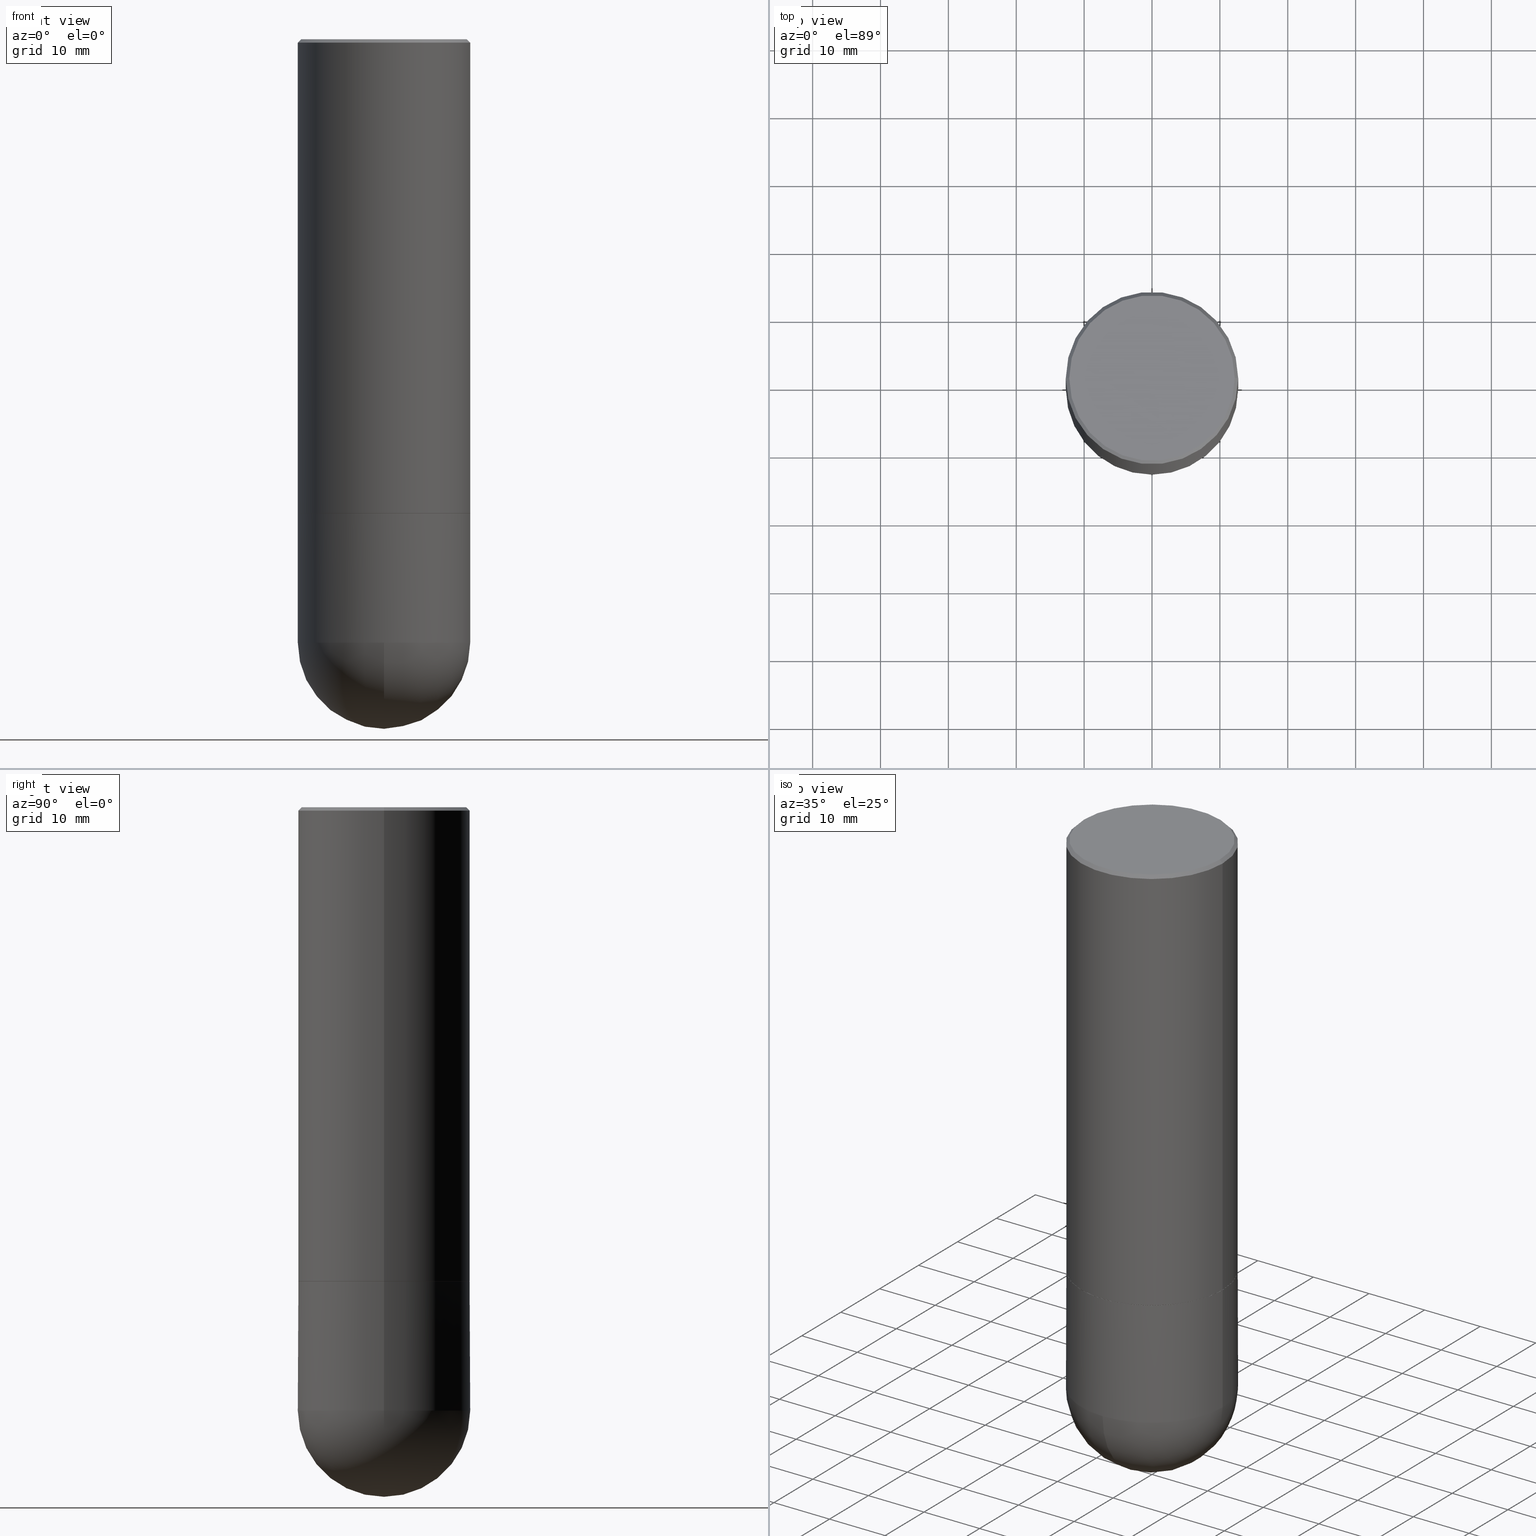
[diagram: canonical four-view strip — front | top / right | iso, engineering-drawing reading convention]
A machine part, canonical four-view strip (front | top / right | iso — engineering-drawing reading convention). The complete STEP part file that produces these views, byte-faithful:
ISO-10303-21;
HEADER;
FILE_DESCRIPTION (( 'STEP AP203' ),
    '1' );
FILE_NAME ('34988.STEP',
    '2024-02-21T18:45:18',
    ( '' ),
    ( '' ),
    'SwSTEP 2.0',
    'SolidWorks 2023',
    '' );
FILE_SCHEMA (( 'CONFIG_CONTROL_DESIGN' ));
ENDSEC;

DATA;
#1 = ORIENTED_EDGE ( 'NONE', *, *, #47, .T. ) ;
#2 = VERTEX_POINT ( 'NONE', #133 ) ;
#3 = EDGE_LOOP ( 'NONE', ( #289, #115, #224, #203, #50 ) ) ;
#4 = AXIS2_PLACEMENT_3D ( 'NONE', #364, #173, #239 ) ;
#5 = APPROVAL_DATE_TIME ( #132, #124 ) ;
#6 = CARTESIAN_POINT ( 'NONE',  ( -3.552713678800417310E-15, -0.5000000000000125455, -3.499999999999998668 ) ) ;
#7 = CALENDAR_DATE ( 2024, 21, 2 ) ;
#8 = CARTESIAN_POINT ( 'NONE',  ( 8.559140821647978089E-29, -1.222018468595101092E-14, -3.500000000000000444 ) ) ;
#9 = CC_DESIGN_DATE_AND_TIME_ASSIGNMENT ( #324, #202, ( #329 ) ) ;
#10 = CARTESIAN_POINT ( 'NONE',  ( 0.5000000000000000000, -1.440236052272796769E-14, -3.500000000000000444 ) ) ;
#11 = CIRCLE ( 'NONE', #77, 0.5000000000000000000 ) ;
#12 = CARTESIAN_POINT ( 'NONE',  ( 8.228021043734090721E-29, -1.269436705409105806E-14, -3.500000000000000000 ) ) ;
#13 = DIRECTION ( 'NONE',  ( 1.000000000000000000, -6.982962677686265133E-15, 0.000000000000000000 ) ) ;
#14 = EDGE_CURVE ( 'NONE', #20, #206, #290, .T. ) ;
#15 = DIRECTION ( 'NONE',  ( 1.000000000000000000, -6.982962677686265133E-15, 0.000000000000000000 ) ) ;
#16 = DIRECTION ( 'NONE',  ( -2.445468806185136597E-29, 3.491481338843145583E-15, 1.000000000000000000 ) ) ;
#17 = CIRCLE ( 'NONE', #284, 0.5000000000000002220 ) ;
#18 = CARTESIAN_POINT ( 'NONE',  ( 0.4800000000000003708, -3.396558832296484071E-15, -3.628235616585113699E-16 ) ) ;
#19 = SPHERICAL_SURFACE ( 'NONE', #260, 0.5000000000000002220 ) ;
#20 = VERTEX_POINT ( 'NONE', #361 ) ;
#21 = LINE ( 'NONE', #337, #46 ) ;
#22 = ORIENTED_EDGE ( 'NONE', *, *, #172, .T. ) ;
#23 = ORIENTED_EDGE ( 'NONE', *, *, #339, .F. ) ;
#24 = DIRECTION ( 'NONE',  ( 0.7071067811867165487, -2.468850131084027659E-15, 0.7071067811863784858 ) ) ;
#25 = VERTEX_POINT ( 'NONE', #327 ) ;
#26 = VERTEX_POINT ( 'NONE', #6 ) ;
#27 = DIRECTION ( 'NONE',  ( -2.445468806185136877E-29, 3.491481338843145188E-15, 1.000000000000000000 ) ) ;
#28 = CALENDAR_DATE ( 2024, 21, 2 ) ;
#29 = ORIENTED_EDGE ( 'NONE', *, *, #80, .F. ) ;
#30 = APPLICATION_CONTEXT ( 'configuration controlled 3d designs of mechanical parts and assemblies' ) ;
#31 = CARTESIAN_POINT ( 'NONE',  ( 0.000000000000000000, 0.000000000000000000, 0.000000000000000000 ) ) ;
#32 = VERTEX_POINT ( 'NONE', #91 ) ;
#33 = AXIS2_PLACEMENT_3D ( 'NONE', #270, #300, #241 ) ;
#34 = DATE_AND_TIME ( #127, #280 ) ;
#35 = DIRECTION ( 'NONE',  ( 1.000000000000000000, -6.982962677686266711E-15, 0.000000000000000000 ) ) ;
#36 = EDGE_CURVE ( 'NONE', #338, #282, #66, .T. ) ;
#37 = DIRECTION ( 'NONE',  ( 1.000000000000000000, -6.982962677686266711E-15, 0.000000000000000000 ) ) ;
#38 = DIRECTION ( 'NONE',  ( -2.445468806185136597E-29, 3.491481338843145583E-15, 1.000000000000000000 ) ) ;
#39 = AXIS2_PLACEMENT_3D ( 'NONE', #382, #68, #198 ) ;
#40 = AXIS2_PLACEMENT_3D ( 'NONE', #51, #253, #281 ) ;
#41 = LINE ( 'NONE', #207, #245 ) ;
#42 = DIRECTION ( 'NONE',  ( -2.438088387897960049E-29, 3.491481338843145188E-15, 1.000000000000000000 ) ) ;
#43 = DESIGN_CONTEXT ( 'detailed design', #30, 'design' ) ;
#44 = FACE_OUTER_BOUND ( 'NONE', #86, .T. ) ;
#45 = CARTESIAN_POINT ( 'NONE',  ( 0.5000000000000000000, -3.500078625662629079E-15, -0.02000000000000010797 ) ) ;
#46 = VECTOR ( 'NONE', #24, 39.37007874015748143 ) ;
#47 = EDGE_CURVE ( 'NONE', #341, #196, #400, .T. ) ;
#48 = DIRECTION ( 'NONE',  ( 1.000000000000000000, -6.982962677686266711E-15, 4.878011538933546479E-29 ) ) ;
#49 = ORIENTED_EDGE ( 'NONE', *, *, #323, .T. ) ;
#50 = ORIENTED_EDGE ( 'NONE', *, *, #47, .F. ) ;
#51 = CARTESIAN_POINT ( 'NONE',  ( 0.000000000000000000, 0.000000000000000000, 0.000000000000000000 ) ) ;
#52 = AXIS2_PLACEMENT_3D ( 'NONE', #107, #75, #186 ) ;
#53 = LINE ( 'NONE', #304, #136 ) ;
#54 = ORIENTED_EDGE ( 'NONE', *, *, #156, .T. ) ;
#55 = CALENDAR_DATE ( 2024, 21, 2 ) ;
#56 = ORIENTED_EDGE ( 'NONE', *, *, #269, .F. ) ;
#57 = CALENDAR_DATE ( 2024, 21, 2 ) ;
#58 = ORIENTED_EDGE ( 'NONE', *, *, #355, .T. ) ;
#59 = LOCAL_TIME ( 13, 45, 18.00000000000000000, #227 ) ;
#60 = PERSON_AND_ORGANIZATION_ROLE ( 'classification_officer' ) ;
#61 = ORIENTED_EDGE ( 'NONE', *, *, #323, .F. ) ;
#62 = FACE_OUTER_BOUND ( 'NONE', #3, .T. ) ;
#63 = COORDINATED_UNIVERSAL_TIME_OFFSET ( 5, 0, .BEHIND. ) ;
#64 = CARTESIAN_POINT ( 'NONE',  ( 6.725039217009124520E-29, -9.601573681818649859E-15, -2.750000000000000000 ) ) ;
#65 = EDGE_CURVE ( 'NONE', #2, #26, #177, .T. ) ;
#66 = CIRCLE ( 'NONE', #104, 0.4800000000000003708 ) ;
#67 = AXIS2_PLACEMENT_3D ( 'NONE', #192, #283, #411 ) ;
#68 = DIRECTION ( 'NONE',  ( -2.445468806185136597E-29, 3.491481338843145583E-15, 1.000000000000000000 ) ) ;
#69 = CARTESIAN_POINT ( 'NONE',  ( 6.725039217009124520E-29, -9.601573681818649859E-15, -2.750000000000000000 ) ) ;
#70 = DIRECTION ( 'NONE',  ( 1.000000000000000000, -6.982962677686265922E-15, 4.876176775795935793E-29 ) ) ;
#71 = AXIS2_PLACEMENT_3D ( 'NONE', #242, #42, #70 ) ;
#72 = EDGE_CURVE ( 'NONE', #206, #261, #97, .T. ) ;
#73 = DIRECTION ( 'NONE',  ( 1.000000000000000000, -6.982962677686266711E-15, 0.000000000000000000 ) ) ;
#74 = CARTESIAN_POINT ( 'NONE',  ( 6.725039217009124520E-29, -9.601573681818649859E-15, -2.750000000000000000 ) ) ;
#75 = DIRECTION ( 'NONE',  ( 2.438088387897960049E-29, -3.491481338843145188E-15, -1.000000000000000000 ) ) ;
#76 = EDGE_CURVE ( 'NONE', #25, #20, #262, .T. ) ;
#77 = AXIS2_PLACEMENT_3D ( 'NONE', #277, #152, #343 ) ;
#78 = ORIENTED_EDGE ( 'NONE', *, *, #76, .F. ) ;
#79 = CARTESIAN_POINT ( 'NONE',  ( 8.559140821647978089E-29, -1.222018468595101092E-14, -3.500000000000000444 ) ) ;
#80 = EDGE_CURVE ( 'NONE', #254, #261, #315, .T. ) ;
#81 = EDGE_LOOP ( 'NONE', ( #293, #1 ) ) ;
#82 =( CONVERSION_BASED_UNIT ( 'INCH', #404 ) LENGTH_UNIT ( ) NAMED_UNIT ( #129 ) );
#83 = EDGE_LOOP ( 'NONE', ( #120, #375, #128, #326 ) ) ;
#84 = APPLICATION_CONTEXT ( 'configuration controlled 3d designs of mechanical parts and assemblies' ) ;
#85 = CARTESIAN_POINT ( 'NONE',  ( 8.228021043734090721E-29, -1.269436705409105806E-14, -3.500000000000000000 ) ) ;
#86 = EDGE_LOOP ( 'NONE', ( #406, #243, #286, #29 ) ) ;
#87 = SECURITY_CLASSIFICATION_LEVEL ( 'unclassified' ) ;
#88 = CARTESIAN_POINT ( 'NONE',  ( 4.890937612370299433E-31, -6.982962677686328587E-17, -0.02000000000000010797 ) ) ;
#89 = CC_DESIGN_PERSON_AND_ORGANIZATION_ASSIGNMENT ( #392, #60, ( #178 ) ) ;
#90 = PERSON_AND_ORGANIZATION ( #385, #342 ) ;
#91 = CARTESIAN_POINT ( 'NONE',  ( 9.472134604056145415E-29, -1.440949155353394884E-14, -4.000000000000000000 ) ) ;
#92 = AXIS2_PLACEMENT_3D ( 'NONE', #161, #287, #258 ) ;
#93 = APPROVAL_PERSON_ORGANIZATION ( #90, #231, #354 ) ;
#94 = ORIENTED_EDGE ( 'NONE', *, *, #217, .T. ) ;
#95 = APPROVAL_STATUS ( 'not_yet_approved' ) ;
#96 = CARTESIAN_POINT ( 'NONE',  ( 0.000000000000000000, 0.000000000000000000, 0.000000000000000000 ) ) ;
#97 = LINE ( 'NONE', #256, #119 ) ;
#98 = CIRCLE ( 'NONE', #209, 0.5000000000000002220 ) ;
#99 = FACE_OUTER_BOUND ( 'NONE', #83, .T. ) ;
#100 = UNCERTAINTY_MEASURE_WITH_UNIT (LENGTH_MEASURE( 1.000000000000000082E-05 ), #82, 'distance_accuracy_value', 'NONE');
#101 = DIRECTION ( 'NONE',  ( -7.105427357601001859E-15, -1.000000000000000000, 0.000000000000000000 ) ) ;
#102 = CC_DESIGN_PERSON_AND_ORGANIZATION_ASSIGNMENT ( #162, #348, ( #246 ) ) ;
#103 = DIRECTION ( 'NONE',  ( 6.982962677686266711E-15, 1.000000000000000000, 0.000000000000000000 ) ) ;
#104 = AXIS2_PLACEMENT_3D ( 'NONE', #349, #123, #320 ) ;
#105 = AXIS2_PLACEMENT_3D ( 'NONE', #31, #352, #390 ) ;
#106 = LINE ( 'NONE', #302, #386 ) ;
#107 = CARTESIAN_POINT ( 'NONE',  ( 3.491481338843200408E-15, 0.4999999999999903411, -2.750000000000001332 ) ) ;
#108 = EDGE_CURVE ( 'NONE', #248, #113, #359, .T. ) ;
#109 = FACE_OUTER_BOUND ( 'NONE', #216, .T. ) ;
#110 = ORIENTED_EDGE ( 'NONE', *, *, #339, .T. ) ;
#111 = DIRECTION ( 'NONE',  ( 1.000000000000000000, -6.982962677686265133E-15, 0.000000000000000000 ) ) ;
#112 = CC_DESIGN_APPROVAL ( #231, ( #178 ) ) ;
#113 = VERTEX_POINT ( 'NONE', #265 ) ;
#114 = ADVANCED_FACE ( 'NONE', ( #163 ), #279, .T. ) ;
#115 = ORIENTED_EDGE ( 'NONE', *, *, #65, .T. ) ;
#116 = CARTESIAN_POINT ( 'NONE',  ( 8.872737021849368446E-45, -1.266791694823380303E-30, -3.628235616585349371E-16 ) ) ;
#117 = ORIENTED_EDGE ( 'NONE', *, *, #80, .T. ) ;
#118 = DIRECTION ( 'NONE',  ( 0.7071067811865459074, -7.319954787623251312E-15, -0.7071067811865492381 ) ) ;
#119 = VECTOR ( 'NONE', #27, 39.37007874015748143 ) ;
#120 = ORIENTED_EDGE ( 'NONE', *, *, #217, .F. ) ;
#121 = AXIS2_PLACEMENT_3D ( 'NONE', #368, #16, #137 ) ;
#122 = DATE_AND_TIME ( #57, #148 ) ;
#123 = DIRECTION ( 'NONE',  ( -2.445468806185136597E-29, 3.491481338843145583E-15, 1.000000000000000000 ) ) ;
#124 = APPROVAL ( #321, 'UNSPECIFIED' ) ;
#125 = MANIFOLD_SOLID_BREP ( 'Body-Move/Copy2[2]', #167 ) ;
#126 = EDGE_LOOP ( 'NONE', ( #22, #346, #56, #23 ) ) ;
#127 = CALENDAR_DATE ( 2024, 21, 2 ) ;
#128 = ORIENTED_EDGE ( 'NONE', *, *, #108, .F. ) ;
#129 = DIMENSIONAL_EXPONENTS ( 1.000000000000000000, 0.000000000000000000, 0.000000000000000000, 0.000000000000000000, 0.000000000000000000, 0.000000000000000000, 0.000000000000000000 ) ;
#130 = APPLICATION_PROTOCOL_DEFINITION ( 'international standard', 'config_control_design', 1994, #30 ) ;
#131 = ORIENTED_EDGE ( 'NONE', *, *, #72, .F. ) ;
#132 = DATE_AND_TIME ( #55, #59 ) ;
#133 = CARTESIAN_POINT ( 'NONE',  ( -0.5000000000000000000, -7.358165505084333404E-15, -3.500000000000000444 ) ) ;
#134 = CARTESIAN_POINT ( 'NONE',  ( 0.5000000000000000000, -3.500078625662629079E-15, -0.02000000000000010797 ) ) ;
#135 = AXIS2_PLACEMENT_3D ( 'NONE', #88, #353, #166 ) ;
#136 = VECTOR ( 'NONE', #223, 39.37007874015748143 ) ;
#137 = DIRECTION ( 'NONE',  ( 1.000000000000000000, -6.982962677686267499E-15, 4.876176775795935793E-29 ) ) ;
#138 = CYLINDRICAL_SURFACE ( 'NONE', #33, 0.5000000000000001110 ) ;
#139 = MANIFOLD_SOLID_BREP ( 'Body-Move/Copy2[1]', #272 ) ;
#140 = FACE_OUTER_BOUND ( 'NONE', #222, .T. ) ;
#141 = PRODUCT ( '34988', '34988', '', ( #383 ) ) ;
#142 = AXIS2_PLACEMENT_3D ( 'NONE', #116, #378, #48 ) ;
#143 = ADVANCED_FACE ( 'NONE', ( #62 ), #322, .T. ) ;
#144 = CARTESIAN_POINT ( 'NONE',  ( -0.4800000000000003708, 3.386736898677839197E-15, -3.628235616585585043E-16 ) ) ;
#145 = DIRECTION ( 'NONE',  ( 2.438088387897960049E-29, -3.491481338843145188E-15, -1.000000000000000000 ) ) ;
#146 =( NAMED_UNIT ( * ) PLANE_ANGLE_UNIT ( ) SI_UNIT ( $, .RADIAN. ) );
#147 = EDGE_LOOP ( 'NONE', ( #155, #373 ) ) ;
#148 = LOCAL_TIME ( 13, 45, 18.00000000000000000, #234 ) ;
#149 = PLANE ( 'NONE',  #214 ) ;
#150 = EDGE_LOOP ( 'NONE', ( #153, #410, #61, #131 ) ) ;
#151 = CC_DESIGN_DATE_AND_TIME_ASSIGNMENT ( #122, #317, ( #178 ) ) ;
#152 = DIRECTION ( 'NONE',  ( -2.445468806185136597E-29, 3.491481338843145583E-15, 1.000000000000000000 ) ) ;
#153 = ORIENTED_EDGE ( 'NONE', *, *, #269, .T. ) ;
#154 = DIRECTION ( 'NONE',  ( -1.000000000000000000, 6.982962677686265922E-15, -4.876176775795935793E-29 ) ) ;
#155 = ORIENTED_EDGE ( 'NONE', *, *, #316, .T. ) ;
#156 = EDGE_CURVE ( 'NONE', #113, #2, #370, .T. ) ;
#157 = ORIENTED_EDGE ( 'NONE', *, *, #355, .F. ) ;
#158 = CC_DESIGN_APPROVAL ( #244, ( #329 ) ) ;
#159 = PERSON_AND_ORGANIZATION_ROLE ( 'creator' ) ;
#160 = ADVANCED_BREP_SHAPE_REPRESENTATION ( '34988', ( #139, #125, #105 ), #310 ) ;
#161 = CARTESIAN_POINT ( 'NONE',  ( 6.722593748202941159E-29, -9.598082200479808430E-15, -2.749000000000000110 ) ) ;
#162 = PERSON_AND_ORGANIZATION ( #385, #342 ) ;
#163 = FACE_OUTER_BOUND ( 'NONE', #314, .T. ) ;
#164 = EDGE_CURVE ( 'NONE', #20, #254, #41, .T. ) ;
#165 = PERSON_AND_ORGANIZATION ( #385, #342 ) ;
#166 = DIRECTION ( 'NONE',  ( 1.000000000000000000, -6.982962677686266711E-15, 0.000000000000000000 ) ) ;
#167 = CLOSED_SHELL ( 'NONE', ( #397, #194, #114, #367, #274, #169, #259, #394 ) ) ;
#168 = CIRCLE ( 'NONE', #204, 0.5000000000000002220 ) ;
#169 = ADVANCED_FACE ( 'NONE', ( #140 ), #176, .T. ) ;
#170 = SHAPE_DEFINITION_REPRESENTATION ( #301, #160 ) ;
#171 = DIRECTION ( 'NONE',  ( -0.7071067811867165487, 7.493145998870964739E-15, 0.7071067811863784858 ) ) ;
#172 = EDGE_CURVE ( 'NONE', #278, #25, #350, .T. ) ;
#173 = DIRECTION ( 'NONE',  ( -1.000000000000000000, 6.982962677686265922E-15, -4.883557194083113462E-29 ) ) ;
#174 = CC_DESIGN_PERSON_AND_ORGANIZATION_ASSIGNMENT ( #381, #159, ( #246 ) ) ;
#175 = DIRECTION ( 'NONE',  ( -1.000000000000000000, 7.105427357601001070E-15, -4.926315508542082329E-29 ) ) ;
#176 = CONICAL_SURFACE ( 'NONE', #365, 0.4989999999999999991, 0.7853981633976873100 ) ;
#177 = CIRCLE ( 'NONE', #213, 0.5000000000000000000 ) ;
#178 = SECURITY_CLASSIFICATION ( '', '', #87 ) ;
#179 = DIRECTION ( 'NONE',  ( -2.445468806185136877E-29, 3.491481338843145188E-15, 1.000000000000000000 ) ) ;
#180 = CARTESIAN_POINT ( 'NONE',  ( 6.725039217009124520E-29, -9.601573681818649859E-15, -2.750000000000000000 ) ) ;
#181 = EDGE_CURVE ( 'NONE', #25, #278, #331, .T. ) ;
#182 = CYLINDRICAL_SURFACE ( 'NONE', #121, 0.5000000000000001110 ) ;
#183 = FACE_OUTER_BOUND ( 'NONE', #126, .T. ) ;
#184 = CARTESIAN_POINT ( 'NONE',  ( -0.5000000000000000000, -7.358165505084330249E-15, -2.750000000000000000 ) ) ;
#185 = ORIENTED_EDGE ( 'NONE', *, *, #316, .F. ) ;
#186 = DIRECTION ( 'NONE',  ( -1.000000000000000000, 6.982962677686265922E-15, -4.876176775795935793E-29 ) ) ;
#187 = PRODUCT_RELATED_PRODUCT_CATEGORY ( 'detail', '', ( #141 ) ) ;
#188 = ORIENTED_EDGE ( 'NONE', *, *, #264, .T. ) ;
#189 = AXIS2_PLACEMENT_3D ( 'NONE', #180, #328, #13 ) ;
#190 = DIRECTION ( 'NONE',  ( -2.445468806185136597E-29, 3.491481338843145583E-15, 1.000000000000000000 ) ) ;
#191 = ORIENTED_EDGE ( 'NONE', *, *, #14, .F. ) ;
#192 = CARTESIAN_POINT ( 'NONE',  ( 4.890937612370299433E-31, -6.982962677686328587E-17, -0.02000000000000010797 ) ) ;
#193 = EDGE_LOOP ( 'NONE', ( #405, #236 ) ) ;
#194 = ADVANCED_FACE ( 'NONE', ( #334 ), #138, .T. ) ;
#195 = PERSON_AND_ORGANIZATION ( #385, #342 ) ;
#196 = VERTEX_POINT ( 'NONE', #271 ) ;
#197 = LOCAL_TIME ( 13, 45, 18.00000000000000000, #232 ) ;
#198 = DIRECTION ( 'NONE',  ( 1.000000000000000000, -6.982962677686266711E-15, 0.000000000000000000 ) ) ;
#199 = PERSON_AND_ORGANIZATION ( #385, #342 ) ;
#200 = ORIENTED_EDGE ( 'NONE', *, *, #36, .F. ) ;
#201 = EDGE_CURVE ( 'NONE', #32, #113, #17, .T. ) ;
#202 = DATE_TIME_ROLE ( 'creation_date' ) ;
#203 = ORIENTED_EDGE ( 'NONE', *, *, #238, .T. ) ;
#204 = AXIS2_PLACEMENT_3D ( 'NONE', #12, #175, #101 ) ;
#205 = ADVANCED_FACE ( 'NONE', ( #99 ), #297, .T. ) ;
#206 = VERTEX_POINT ( 'NONE', #208 ) ;
#207 = CARTESIAN_POINT ( 'NONE',  ( -0.5000000000000001110, 3.552713678800501718E-15, -2.459467545127453732E-29 ) ) ;
#208 = CARTESIAN_POINT ( 'NONE',  ( 0.5000000000000002220, -1.308956353932294336E-14, -2.749000000000000110 ) ) ;
#209 = AXIS2_PLACEMENT_3D ( 'NONE', #211, #396, #333 ) ;
#210 = CARTESIAN_POINT ( 'NONE',  ( -0.5000000000000000000, 3.421651712066270057E-15, -0.02000000000000010797 ) ) ;
#211 = CARTESIAN_POINT ( 'NONE',  ( 6.722593748202941159E-29, -9.598082200479808430E-15, -2.749000000000000110 ) ) ;
#212 = CARTESIAN_POINT ( 'NONE',  ( 0.5000000000000000000, -3.491481338843133355E-15, 2.438088387897967896E-29 ) ) ;
#213 = AXIS2_PLACEMENT_3D ( 'NONE', #235, #318, #37 ) ;
#214 = AXIS2_PLACEMENT_3D ( 'NONE', #376, #145, #154 ) ;
#215 = FACE_OUTER_BOUND ( 'NONE', #308, .T. ) ;
#216 = EDGE_LOOP ( 'NONE', ( #157, #185, #384, #117 ) ) ;
#217 = EDGE_CURVE ( 'NONE', #32, #26, #168, .T. ) ;
#218 = FACE_OUTER_BOUND ( 'NONE', #147, .T. ) ;
#219 = ORIENTED_EDGE ( 'NONE', *, *, #309, .F. ) ;
#220 = APPROVAL_PERSON_ORGANIZATION ( #263, #124, #291 ) ;
#221 = APPLICATION_PROTOCOL_DEFINITION ( 'international standard', 'config_control_design', 1994, #84 ) ;
#222 = EDGE_LOOP ( 'NONE', ( #78, #312, #110, #191 ) ) ;
#223 = DIRECTION ( 'NONE',  ( -0.7071067811865459074, 2.468850131082239706E-15, -0.7071067811865492381 ) ) ;
#224 = ORIENTED_EDGE ( 'NONE', *, *, #380, .T. ) ;
#225 = DATE_AND_TIME ( #28, #336 ) ;
#226 = DIRECTION ( 'NONE',  ( 1.000000000000000000, -6.982962677686266711E-15, 4.876176775795935793E-29 ) ) ;
#227 = COORDINATED_UNIVERSAL_TIME_OFFSET ( 5, 0, .BEHIND. ) ;
#228 = CIRCLE ( 'NONE', #142, 0.4800000000000003708 ) ;
#229 = CARTESIAN_POINT ( 'NONE',  ( -0.4989999999999999991, -6.055965430375749938E-15, -2.750000000000000000 ) ) ;
#230 = AXIS2_PLACEMENT_3D ( 'NONE', #240, #268, #299 ) ;
#231 = APPROVAL ( #288, 'UNSPECIFIED' ) ;
#232 = COORDINATED_UNIVERSAL_TIME_OFFSET ( 5, 0, .BEHIND. ) ;
#233 = DIRECTION ( 'NONE',  ( 2.445468806185136597E-29, -3.491481338843145583E-15, -1.000000000000000000 ) ) ;
#234 = COORDINATED_UNIVERSAL_TIME_OFFSET ( 5, 0, .BEHIND. ) ;
#235 = CARTESIAN_POINT ( 'NONE',  ( 8.559140821647978089E-29, -1.222018468595101092E-14, -3.500000000000000444 ) ) ;
#236 = ORIENTED_EDGE ( 'NONE', *, *, #181, .F. ) ;
#237 = VECTOR ( 'NONE', #171, 39.37007874015748143 ) ;
#238 = EDGE_CURVE ( 'NONE', #248, #196, #266, .T. ) ;
#239 = DIRECTION ( 'NONE',  ( 6.982962677686265922E-15, 1.000000000000000000, -3.278217592397114284E-15 ) ) ;
#240 = CARTESIAN_POINT ( 'NONE',  ( 6.725039217009124520E-29, -9.601573681818649859E-15, -2.750000000000000000 ) ) ;
#241 = DIRECTION ( 'NONE',  ( 1.000000000000000000, -6.982962677686267499E-15, 4.876176775795935793E-29 ) ) ;
#242 = CARTESIAN_POINT ( 'NONE',  ( 6.725039217009124520E-29, -9.601573681818649859E-15, -2.750000000000000000 ) ) ;
#243 = ORIENTED_EDGE ( 'NONE', *, *, #14, .T. ) ;
#244 = APPROVAL ( #95, 'UNSPECIFIED' ) ;
#245 = VECTOR ( 'NONE', #179, 39.37007874015748143 ) ;
#246 = PRODUCT_DEFINITION_FORMATION_WITH_SPECIFIED_SOURCE ( 'ANY', '', #141, .NOT_KNOWN. ) ;
#247 = LINE ( 'NONE', #45, #360 ) ;
#248 = VERTEX_POINT ( 'NONE', #10 ) ;
#249 = EDGE_CURVE ( 'NONE', #196, #341, #371, .T. ) ;
#250 = DIRECTION ( 'NONE',  ( -1.000000000000000000, 6.982962677686265922E-15, -4.883557194083113462E-29 ) ) ;
#251 = ORIENTED_EDGE ( 'NONE', *, *, #249, .F. ) ;
#252 = VECTOR ( 'NONE', #362, 39.37007874015748143 ) ;
#253 = DIRECTION ( 'NONE',  ( -2.445468806185136597E-29, 3.491481338843145583E-15, 1.000000000000000000 ) ) ;
#254 = VERTEX_POINT ( 'NONE', #210 ) ;
#255 = PERSON_AND_ORGANIZATION_ROLE ( 'design_owner' ) ;
#256 = CARTESIAN_POINT ( 'NONE',  ( 0.5000000000000001110, -3.491481338843134539E-15, 2.438088387897968457E-29 ) ) ;
#257 = APPROVAL_ROLE ( '' ) ;
#258 = DIRECTION ( 'NONE',  ( 1.000000000000000000, -6.982962677686267499E-15, 0.000000000000000000 ) ) ;
#259 = ADVANCED_FACE ( 'NONE', ( #401 ), #332, .F. ) ;
#260 = AXIS2_PLACEMENT_3D ( 'NONE', #85, #250, #313 ) ;
#261 = VERTEX_POINT ( 'NONE', #134 ) ;
#262 = LINE ( 'NONE', #229, #237 ) ;
#263 = PERSON_AND_ORGANIZATION ( #385, #342 ) ;
#264 = EDGE_CURVE ( 'NONE', #2, #341, #106, .T. ) ;
#265 = CARTESIAN_POINT ( 'NONE',  ( 3.491481338843217763E-15, 0.4999999999999876765, -3.500000000000002220 ) ) ;
#266 = LINE ( 'NONE', #212, #252 ) ;
#267 = AXIS2_PLACEMENT_3D ( 'NONE', #409, #190, #111 ) ;
#268 = DIRECTION ( 'NONE',  ( -2.445468806185136597E-29, 3.491481338843145583E-15, 1.000000000000000000 ) ) ;
#269 = EDGE_CURVE ( 'NONE', #206, #20, #98, .T. ) ;
#270 = CARTESIAN_POINT ( 'NONE',  ( 0.000000000000000000, 0.000000000000000000, 0.000000000000000000 ) ) ;
#271 = CARTESIAN_POINT ( 'NONE',  ( 0.5000000000000000000, -1.309305502066178321E-14, -2.750000000000000000 ) ) ;
#272 = CLOSED_SHELL ( 'NONE', ( #387, #389, #205, #285, #143 ) ) ;
#273 = AXIS2_PLACEMENT_3D ( 'NONE', #79, #307, #311 ) ;
#274 = ADVANCED_FACE ( 'NONE', ( #44 ), #182, .T. ) ;
#275 = FACE_OUTER_BOUND ( 'NONE', #81, .T. ) ;
#276 = CC_DESIGN_PERSON_AND_ORGANIZATION_ASSIGNMENT ( #199, #255, ( #141 ) ) ;
#277 = CARTESIAN_POINT ( 'NONE',  ( 4.890937612370299433E-31, -6.982962677686328587E-17, -0.02000000000000010797 ) ) ;
#278 = VERTEX_POINT ( 'NONE', #363 ) ;
#279 = CONICAL_SURFACE ( 'NONE', #335, 0.5000000000000000000, 0.7853981633974459475 ) ;
#280 = LOCAL_TIME ( 13, 45, 18.00000000000000000, #63 ) ;
#281 = DIRECTION ( 'NONE',  ( 1.000000000000000000, -6.982962677686266711E-15, 4.876176775795935793E-29 ) ) ;
#282 = VERTEX_POINT ( 'NONE', #144 ) ;
#283 = DIRECTION ( 'NONE',  ( 2.445468806185136597E-29, -3.491481338843145583E-15, -1.000000000000000000 ) ) ;
#284 = AXIS2_PLACEMENT_3D ( 'NONE', #398, #296, #103 ) ;
#285 = ADVANCED_FACE ( 'NONE', ( #275 ), #403, .F. ) ;
#286 = ORIENTED_EDGE ( 'NONE', *, *, #72, .T. ) ;
#287 = DIRECTION ( 'NONE',  ( -2.445468806185136597E-29, 3.491481338843145583E-15, 1.000000000000000000 ) ) ;
#288 = APPROVAL_STATUS ( 'not_yet_approved' ) ;
#289 = ORIENTED_EDGE ( 'NONE', *, *, #264, .F. ) ;
#290 = CIRCLE ( 'NONE', #92, 0.5000000000000002220 ) ;
#291 = APPROVAL_ROLE ( '' ) ;
#292 = CIRCLE ( 'NONE', #273, 0.5000000000000000000 ) ;
#293 = ORIENTED_EDGE ( 'NONE', *, *, #249, .T. ) ;
#294 = COORDINATED_UNIVERSAL_TIME_OFFSET ( 5, 0, .BEHIND. ) ;
#295 = DIRECTION ( 'NONE',  ( -2.445468806185136597E-29, 3.491481338843145583E-15, 1.000000000000000000 ) ) ;
#296 = DIRECTION ( 'NONE',  ( 1.000000000000000000, -6.982962677686265922E-15, 4.883557194083112340E-29 ) ) ;
#297 = SPHERICAL_SURFACE ( 'NONE', #4, 0.5000000000000002220 ) ;
#298 = CC_DESIGN_APPROVAL ( #124, ( #246 ) ) ;
#299 = DIRECTION ( 'NONE',  ( 1.000000000000000000, -6.982962677686265133E-15, 0.000000000000000000 ) ) ;
#300 = DIRECTION ( 'NONE',  ( -2.445468806185136597E-29, 3.491481338843145583E-15, 1.000000000000000000 ) ) ;
#301 = PRODUCT_DEFINITION_SHAPE ( 'NONE', 'NONE',  #329 ) ;
#302 = CARTESIAN_POINT ( 'NONE',  ( -0.5000000000000000000, 3.552713678800500929E-15, -2.459467545127452891E-29 ) ) ;
#303 = AXIS2_PLACEMENT_3D ( 'NONE', #64, #388, #35 ) ;
#304 = CARTESIAN_POINT ( 'NONE',  ( -0.5000000000000000000, 3.421651712066270057E-15, -0.02000000000000010797 ) ) ;
#305 =( NAMED_UNIT ( * ) SI_UNIT ( $, .STERADIAN. ) SOLID_ANGLE_UNIT ( ) );
#306 = EDGE_LOOP ( 'NONE', ( #358, #94, #344, #412 ) ) ;
#307 = DIRECTION ( 'NONE',  ( -2.445468806185136597E-29, 3.491481338843145583E-15, 1.000000000000000000 ) ) ;
#308 = EDGE_LOOP ( 'NONE', ( #54, #188, #251, #369, #379 ) ) ;
#309 = EDGE_CURVE ( 'NONE', #282, #254, #53, .T. ) ;
#310 =( GEOMETRIC_REPRESENTATION_CONTEXT ( 3 ) GLOBAL_UNCERTAINTY_ASSIGNED_CONTEXT ( ( #100 ) ) GLOBAL_UNIT_ASSIGNED_CONTEXT ( ( #82, #146, #305 ) ) REPRESENTATION_CONTEXT ( 'NONE', 'WORKASPACE' ) );
#311 = DIRECTION ( 'NONE',  ( 1.000000000000000000, -6.982962677686266711E-15, 0.000000000000000000 ) ) ;
#312 = ORIENTED_EDGE ( 'NONE', *, *, #181, .T. ) ;
#313 = DIRECTION ( 'NONE',  ( 6.982962677686265922E-15, 1.000000000000000000, -3.278217592397114284E-15 ) ) ;
#314 = EDGE_LOOP ( 'NONE', ( #200, #58, #49, #219 ) ) ;
#315 = CIRCLE ( 'NONE', #135, 0.5000000000000000000 ) ;
#316 = EDGE_CURVE ( 'NONE', #282, #338, #228, .T. ) ;
#317 = DATE_TIME_ROLE ( 'classification_date' ) ;
#318 = DIRECTION ( 'NONE',  ( -2.445468806185136597E-29, 3.491481338843145583E-15, 1.000000000000000000 ) ) ;
#319 = APPROVAL_DATE_TIME ( #225, #244 ) ;
#320 = DIRECTION ( 'NONE',  ( 1.000000000000000000, -6.982962677686266711E-15, 4.878011538933546479E-29 ) ) ;
#321 = APPROVAL_STATUS ( 'not_yet_approved' ) ;
#322 = CYLINDRICAL_SURFACE ( 'NONE', #395, 0.5000000000000000000 ) ;
#323 = EDGE_CURVE ( 'NONE', #261, #254, #11, .T. ) ;
#324 = DATE_AND_TIME ( #7, #197 ) ;
#325 = AXIS2_PLACEMENT_3D ( 'NONE', #74, #330, #73 ) ;
#326 = ORIENTED_EDGE ( 'NONE', *, *, #380, .F. ) ;
#327 = CARTESIAN_POINT ( 'NONE',  ( -0.4989999999999999991, -6.050666976027527536E-15, -2.750000000000000000 ) ) ;
#328 = DIRECTION ( 'NONE',  ( -2.445468806185136597E-29, 3.491481338843145583E-15, 1.000000000000000000 ) ) ;
#329 = PRODUCT_DEFINITION ( 'UNKNOWN', '', #246, #43 ) ;
#330 = DIRECTION ( 'NONE',  ( -2.445468806185136597E-29, 3.491481338843145583E-15, 1.000000000000000000 ) ) ;
#331 = CIRCLE ( 'NONE', #189, 0.4989999999999999991 ) ;
#332 = PLANE ( 'NONE',  #71 ) ;
#333 = DIRECTION ( 'NONE',  ( 1.000000000000000000, -6.982962677686267499E-15, 0.000000000000000000 ) ) ;
#334 = FACE_OUTER_BOUND ( 'NONE', #150, .T. ) ;
#335 = AXIS2_PLACEMENT_3D ( 'NONE', #391, #233, #356 ) ;
#336 = LOCAL_TIME ( 13, 45, 18.00000000000000000, #294 ) ;
#337 = CARTESIAN_POINT ( 'NONE',  ( 0.4989999999999999991, -1.308607205798409720E-14, -2.750000000000000000 ) ) ;
#338 = VERTEX_POINT ( 'NONE', #18 ) ;
#339 = EDGE_CURVE ( 'NONE', #278, #206, #21, .T. ) ;
#340 =( LENGTH_UNIT ( ) NAMED_UNIT ( * ) SI_UNIT ( $, .METRE. ) );
#341 = VERTEX_POINT ( 'NONE', #184 ) ;
#342 = ORGANIZATION ( 'UNSPECIFIED', 'UNSPECIFIED', '' ) ;
#343 = DIRECTION ( 'NONE',  ( 1.000000000000000000, -6.982962677686266711E-15, 0.000000000000000000 ) ) ;
#344 = ORIENTED_EDGE ( 'NONE', *, *, #65, .F. ) ;
#345 = APPROVAL_DATE_TIME ( #34, #231 ) ;
#346 = ORIENTED_EDGE ( 'NONE', *, *, #76, .T. ) ;
#347 = CC_DESIGN_PERSON_AND_ORGANIZATION_ASSIGNMENT ( #165, #357, ( #329 ) ) ;
#348 = PERSON_AND_ORGANIZATION_ROLE ( 'design_supplier' ) ;
#349 = CARTESIAN_POINT ( 'NONE',  ( 8.872737021849368446E-45, -1.266791694823380303E-30, -3.628235616585349371E-16 ) ) ;
#350 = CIRCLE ( 'NONE', #230, 0.4989999999999999991 ) ;
#351 = CONICAL_SURFACE ( 'NONE', #267, 0.4989999999999999991, 0.7853981633976873100 ) ;
#352 = DIRECTION ( 'NONE',  ( 0.000000000000000000, 0.000000000000000000, 1.000000000000000000 ) ) ;
#353 = DIRECTION ( 'NONE',  ( -2.445468806185136597E-29, 3.491481338843145583E-15, 1.000000000000000000 ) ) ;
#354 = APPROVAL_ROLE ( '' ) ;
#355 = EDGE_CURVE ( 'NONE', #338, #261, #247, .T. ) ;
#356 = DIRECTION ( 'NONE',  ( -1.000000000000000000, 6.982962677686266711E-15, 0.000000000000000000 ) ) ;
#357 = PERSON_AND_ORGANIZATION_ROLE ( 'creator' ) ;
#358 = ORIENTED_EDGE ( 'NONE', *, *, #201, .F. ) ;
#359 = CIRCLE ( 'NONE', #39, 0.5000000000000000000 ) ;
#360 = VECTOR ( 'NONE', #118, 39.37007874015748143 ) ;
#361 = CARTESIAN_POINT ( 'NONE',  ( -0.5000000000000002220, -1.281242234827831779E-15, -2.749000000000000110 ) ) ;
#362 = DIRECTION ( 'NONE',  ( -2.445468806185136877E-29, 3.491481338843145188E-15, 1.000000000000000000 ) ) ;
#363 = CARTESIAN_POINT ( 'NONE',  ( 0.4989999999999999991, -1.308607205798409720E-14, -2.750000000000000000 ) ) ;
#364 = CARTESIAN_POINT ( 'NONE',  ( 8.228021043734090721E-29, -1.269436705409105806E-14, -3.500000000000000000 ) ) ;
#365 = AXIS2_PLACEMENT_3D ( 'NONE', #69, #38, #15 ) ;
#366 = DIRECTION ( 'NONE',  ( -2.445468806185136877E-29, 3.491481338843145188E-15, 1.000000000000000000 ) ) ;
#367 = ADVANCED_FACE ( 'NONE', ( #109 ), #377, .T. ) ;
#368 = CARTESIAN_POINT ( 'NONE',  ( 0.000000000000000000, 0.000000000000000000, 0.000000000000000000 ) ) ;
#369 = ORIENTED_EDGE ( 'NONE', *, *, #238, .F. ) ;
#370 = CIRCLE ( 'NONE', #407, 0.5000000000000000000 ) ;
#371 = CIRCLE ( 'NONE', #325, 0.5000000000000000000 ) ;
#372 = CYLINDRICAL_SURFACE ( 'NONE', #40, 0.5000000000000000000 ) ;
#373 = ORIENTED_EDGE ( 'NONE', *, *, #36, .T. ) ;
#374 = FACE_OUTER_BOUND ( 'NONE', #306, .T. ) ;
#375 = ORIENTED_EDGE ( 'NONE', *, *, #201, .T. ) ;
#376 = CARTESIAN_POINT ( 'NONE',  ( 3.351822085289410309E-15, 0.4800000000000003708, -1.857322823473978811E-15 ) ) ;
#377 = CONICAL_SURFACE ( 'NONE', #67, 0.5000000000000000000, 0.7853981633974459475 ) ;
#378 = DIRECTION ( 'NONE',  ( -2.445468806185136597E-29, 3.491481338843145583E-15, 1.000000000000000000 ) ) ;
#379 = ORIENTED_EDGE ( 'NONE', *, *, #108, .T. ) ;
#380 = EDGE_CURVE ( 'NONE', #26, #248, #292, .T. ) ;
#381 = PERSON_AND_ORGANIZATION ( #385, #342 ) ;
#382 = CARTESIAN_POINT ( 'NONE',  ( 8.559140821647978089E-29, -1.222018468595101092E-14, -3.500000000000000444 ) ) ;
#383 = MECHANICAL_CONTEXT ( 'NONE', #84, 'mechanical' ) ;
#384 = ORIENTED_EDGE ( 'NONE', *, *, #309, .T. ) ;
#385 = PERSON ( 'UNSPECIFIED', 'UNSPECIFIED', 'UNSPECIFIED', ('UNSPECIFIED'), ('UNSPECIFIED'), ('UNSPECIFIED') ) ;
#386 = VECTOR ( 'NONE', #366, 39.37007874015748143 ) ;
#387 = ADVANCED_FACE ( 'NONE', ( #215 ), #372, .T. ) ;
#388 = DIRECTION ( 'NONE',  ( -2.445468806185136597E-29, 3.491481338843145583E-15, 1.000000000000000000 ) ) ;
#389 = ADVANCED_FACE ( 'NONE', ( #374 ), #19, .T. ) ;
#390 = DIRECTION ( 'NONE',  ( 1.000000000000000000, 0.000000000000000000, 0.000000000000000000 ) ) ;
#391 = CARTESIAN_POINT ( 'NONE',  ( 4.890937612370299433E-31, -6.982962677686328587E-17, -0.02000000000000010797 ) ) ;
#392 = PERSON_AND_ORGANIZATION ( #385, #342 ) ;
#393 = DIRECTION ( 'NONE',  ( -2.445468806185136597E-29, 3.491481338843145583E-15, 1.000000000000000000 ) ) ;
#394 = ADVANCED_FACE ( 'NONE', ( #218 ), #149, .F. ) ;
#395 = AXIS2_PLACEMENT_3D ( 'NONE', #96, #295, #226 ) ;
#396 = DIRECTION ( 'NONE',  ( -2.445468806185136597E-29, 3.491481338843145583E-15, 1.000000000000000000 ) ) ;
#397 = ADVANCED_FACE ( 'NONE', ( #183 ), #351, .T. ) ;
#398 = CARTESIAN_POINT ( 'NONE',  ( 8.228021043734090721E-29, -1.269436705409105806E-14, -3.500000000000000000 ) ) ;
#399 = DIRECTION ( 'NONE',  ( 1.000000000000000000, -6.982962677686266711E-15, 0.000000000000000000 ) ) ;
#400 = CIRCLE ( 'NONE', #303, 0.5000000000000000000 ) ;
#401 = FACE_OUTER_BOUND ( 'NONE', #193, .T. ) ;
#402 = APPROVAL_PERSON_ORGANIZATION ( #195, #244, #257 ) ;
#403 = PLANE ( 'NONE',  #52 ) ;
#404 = LENGTH_MEASURE_WITH_UNIT ( LENGTH_MEASURE( 0.02539999999999999897 ), #340 );
#405 = ORIENTED_EDGE ( 'NONE', *, *, #172, .F. ) ;
#406 = ORIENTED_EDGE ( 'NONE', *, *, #164, .F. ) ;
#407 = AXIS2_PLACEMENT_3D ( 'NONE', #8, #393, #399 ) ;
#408 = CC_DESIGN_SECURITY_CLASSIFICATION ( #178, ( #246 ) ) ;
#409 = CARTESIAN_POINT ( 'NONE',  ( 6.725039217009124520E-29, -9.601573681818649859E-15, -2.750000000000000000 ) ) ;
#410 = ORIENTED_EDGE ( 'NONE', *, *, #164, .T. ) ;
#411 = DIRECTION ( 'NONE',  ( -1.000000000000000000, 6.982962677686266711E-15, 0.000000000000000000 ) ) ;
#412 = ORIENTED_EDGE ( 'NONE', *, *, #156, .F. ) ;
ENDSEC;
END-ISO-10303-21;
